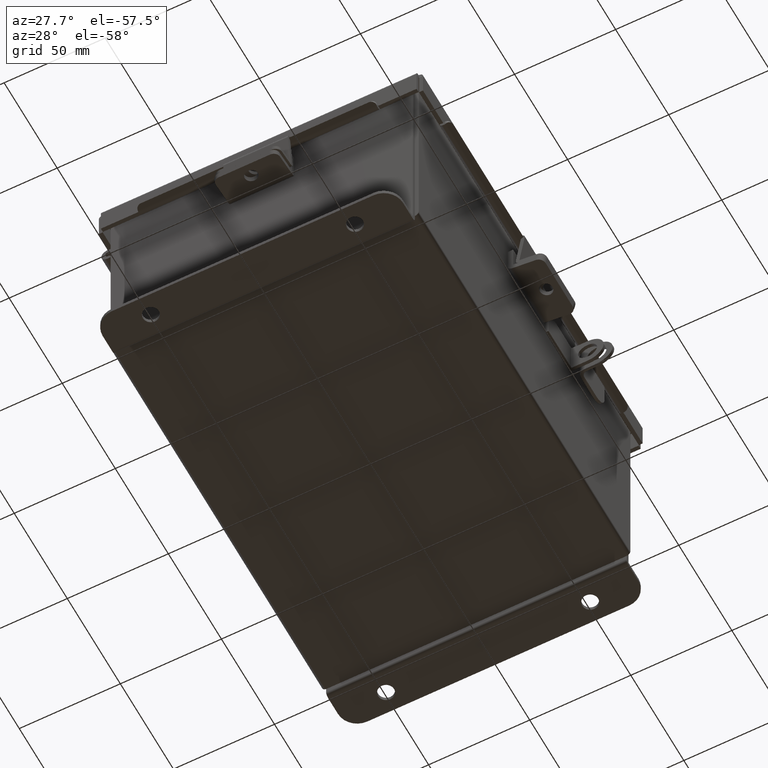
[diagram: clean part render]
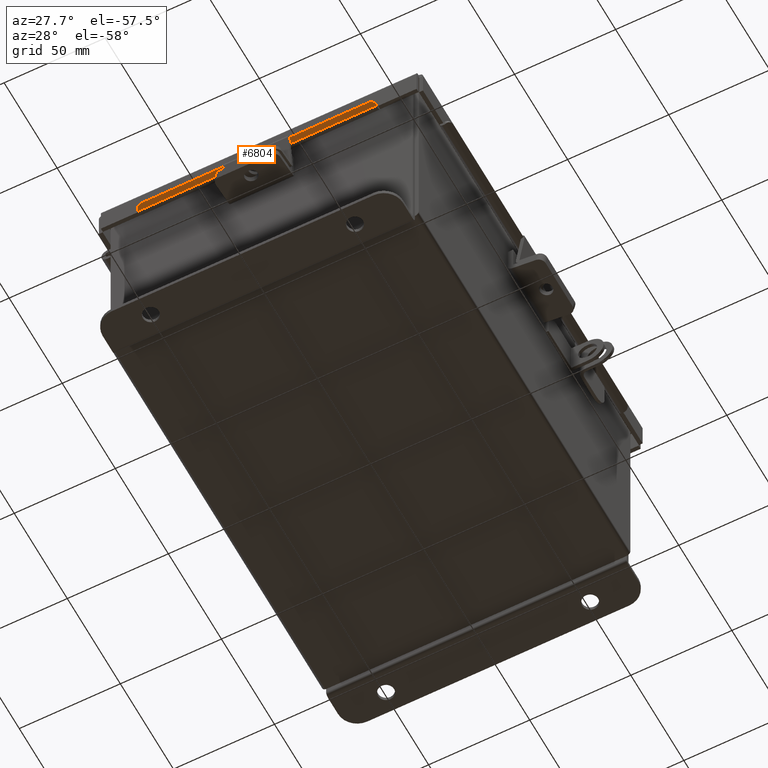
[diagram: same view with one face highlighted and labeled with its STEP entity id]
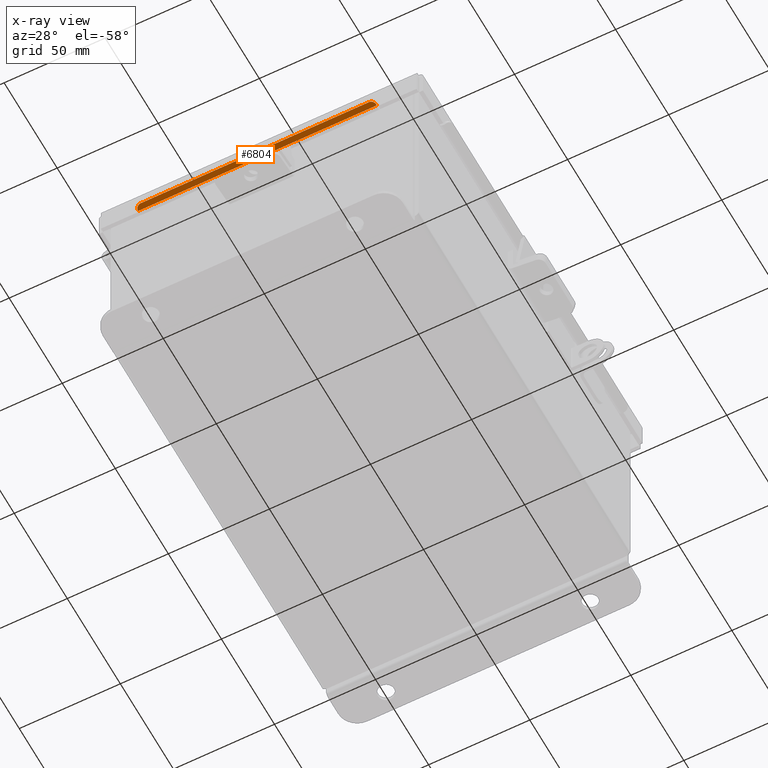
[diagram: x-ray of the same camera — body ghosted, the highlighted face saturated]
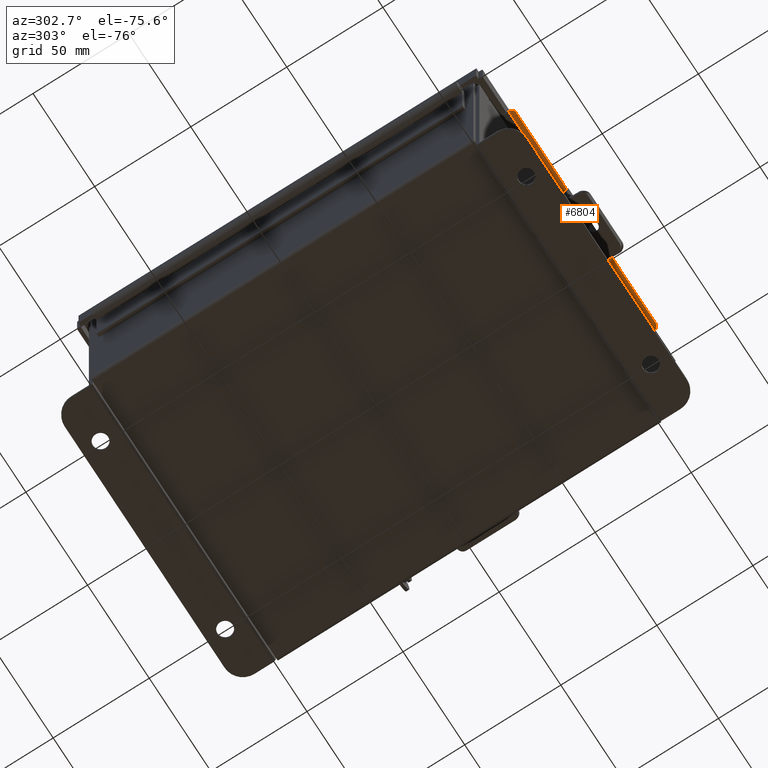
[diagram: same view with one face highlighted and labeled with its STEP entity id]
A machine part, auxiliary view. The second image highlights one B-rep face of the part: STEP entity #6804.
The next image is the same camera in x-ray: the body ghosted, the highlighted face saturated — about 0% of this face is hidden behind the body in this view.
A second angle (auxiliary view) of the same face is appended — the face is thin or edge-on in the first view.
In plain terms, the highlighted planar face has unit normal (-0, 0.5, 0.866).
Its self-contained STEP definition (entity closure, byte-faithful):
#66 = AXIS2_PLACEMENT_3D ( 'NONE', #9990, #350, #6388 ) ;
#70 = ORIENTED_EDGE ( 'NONE', *, *, #12935, .T. ) ;
#207 = EDGE_CURVE ( 'NONE', #8331, #2365, #1319, .T. ) ;
#350 = DIRECTION ( 'NONE',  ( 4.604011513242101700E-017, -0.5000000000000023300, 0.8660254037844372600 ) ) ;
#516 = ORIENTED_EDGE ( 'NONE', *, *, #6750, .F. ) ;
#1319 = CIRCLE ( 'NONE', #66, 0.09999999999999986700 ) ;
#1365 = CARTESIAN_POINT ( 'NONE',  ( -2.224478932188134600, -4.298056350946109400, 0.4916841953253948100 ) ) ;
#1623 = PLANE ( 'NONE',  #15021 ) ;
#2024 = CARTESIAN_POINT ( 'NONE',  ( 2.324478932188136100, -4.207100000000001400, 0.5441978690286367600 ) ) ;
#2290 = VECTOR ( 'NONE', #2699, 39.37007874015748100 ) ;
#2365 = VERTEX_POINT ( 'NONE', #5513 ) ;
#2451 = DIRECTION ( 'NONE',  ( -0.0000000000000000000, -0.8660254037844373800, -0.5000000000000023300 ) ) ;
#2699 = DIRECTION ( 'NONE',  ( 1.000000000000000000, -1.160137203438067900E-016, -1.201430984006366000E-016 ) ) ;
#2702 = CARTESIAN_POINT ( 'NONE',  ( 2.224478932188136400, -4.298056350946109400, 0.4916841953253947600 ) ) ;
#2807 = DIRECTION ( 'NONE',  ( 0.0000000000000000000, 0.8660254037844373800, 0.5000000000000023300 ) ) ;
#3445 = ORIENTED_EDGE ( 'NONE', *, *, #9116, .T. ) ;
#4007 = CARTESIAN_POINT ( 'NONE',  ( -2.324478932188134300, -4.211453810567666000, 0.5416841953253950200 ) ) ;
#4155 = VECTOR ( 'NONE', #2451, 39.37007874015748900 ) ;
#4224 = DIRECTION ( 'NONE',  ( 4.604011513242101700E-017, -0.5000000000000023300, 0.8660254037844372600 ) ) ;
#4549 = VECTOR ( 'NONE', #5407, 39.37007874015748100 ) ;
#5407 = DIRECTION ( 'NONE',  ( 1.000000000000000000, -0.0000000000000000000, -1.469064720180456400E-017 ) ) ;
#5472 = EDGE_CURVE ( 'NONE', #8083, #12354, #10506, .T. ) ;
#5513 = CARTESIAN_POINT ( 'NONE',  ( 2.324478932188136100, -4.211453810567666000, 0.5416841953253948000 ) ) ;
#5908 = AXIS2_PLACEMENT_3D ( 'NONE', #11340, #4224, #12550 ) ;
#5975 = CARTESIAN_POINT ( 'NONE',  ( -2.324478932188134300, -4.298056350946109400, 0.4916841953253948100 ) ) ;
#6227 = DIRECTION ( 'NONE',  ( -0.0000000000000000000, 0.8660254037844379300, 0.5000000000000012200 ) ) ;
#6388 = DIRECTION ( 'NONE',  ( -2.731847993664266800E-015, 0.8660254037844370400, 0.5000000000000028900 ) ) ;
#6750 = EDGE_CURVE ( 'NONE', #8083, #13551, #8582, .T. ) ;
#6804 = ADVANCED_FACE ( 'NONE', ( #14535 ), #1623, .F. ) ;
#7208 = CIRCLE ( 'NONE', #5908, 0.09999999999999986700 ) ;
#7498 = EDGE_LOOP ( 'NONE', ( #12090, #12358, #70, #516, #11832, #3445 ) ) ;
#8083 = VERTEX_POINT ( 'NONE', #15283 ) ;
#8331 = VERTEX_POINT ( 'NONE', #2702 ) ;
#8582 = LINE ( 'NONE', #9811, #2290 ) ;
#8620 = CARTESIAN_POINT ( 'NONE',  ( 2.324478932188136100, -4.193600000000000000, 0.5519920976626975200 ) ) ;
#8708 = CARTESIAN_POINT ( 'NONE',  ( 1.158252278942495800E-016, -1.287419589632089200, 2.229876139902239500 ) ) ;
#9116 = EDGE_CURVE ( 'NONE', #12354, #10648, #7208, .T. ) ;
#9503 = VECTOR ( 'NONE', #6227, 39.37007874015748100 ) ;
#9811 = CARTESIAN_POINT ( 'NONE',  ( -4.254203690968461700E-016, -4.207099999999999600, 0.5441978690286386500 ) ) ;
#9916 = DIRECTION ( 'NONE',  ( -4.604011513242102300E-017, 0.5000000000000023300, -0.8660254037844373800 ) ) ;
#9990 = CARTESIAN_POINT ( 'NONE',  ( 2.224478932188136400, -4.211453810567666900, 0.5416841953253959100 ) ) ;
#10506 = LINE ( 'NONE', #5975, #4155 ) ;
#10521 = EDGE_CURVE ( 'NONE', #10648, #8331, #14038, .T. ) ;
#10648 = VERTEX_POINT ( 'NONE', #1365 ) ;
#11340 = CARTESIAN_POINT ( 'NONE',  ( -2.224478932188134600, -4.211453810567666900, 0.5416841953253959100 ) ) ;
#11832 = ORIENTED_EDGE ( 'NONE', *, *, #5472, .T. ) ;
#12090 = ORIENTED_EDGE ( 'NONE', *, *, #10521, .T. ) ;
#12354 = VERTEX_POINT ( 'NONE', #4007 ) ;
#12358 = ORIENTED_EDGE ( 'NONE', *, *, #207, .T. ) ;
#12550 = DIRECTION ( 'NONE',  ( 0.0000000000000000000, 0.8660254037844370400, 0.5000000000000028900 ) ) ;
#12935 = EDGE_CURVE ( 'NONE', #2365, #13551, #13401, .T. ) ;
#13401 = LINE ( 'NONE', #8620, #9503 ) ;
#13551 = VERTEX_POINT ( 'NONE', #2024 ) ;
#14038 = LINE ( 'NONE', #14930, #4549 ) ;
#14535 = FACE_OUTER_BOUND ( 'NONE', #7498, .T. ) ;
#14930 = CARTESIAN_POINT ( 'NONE',  ( 2.324478932188136100, -4.298056350946109400, 0.4916841953253947600 ) ) ;
#15021 = AXIS2_PLACEMENT_3D ( 'NONE', #8708, #9916, #2807 ) ;
#15283 = CARTESIAN_POINT ( 'NONE',  ( -2.324478932188134300, -4.207099999999999600, 0.5441978690286386500 ) ) ;